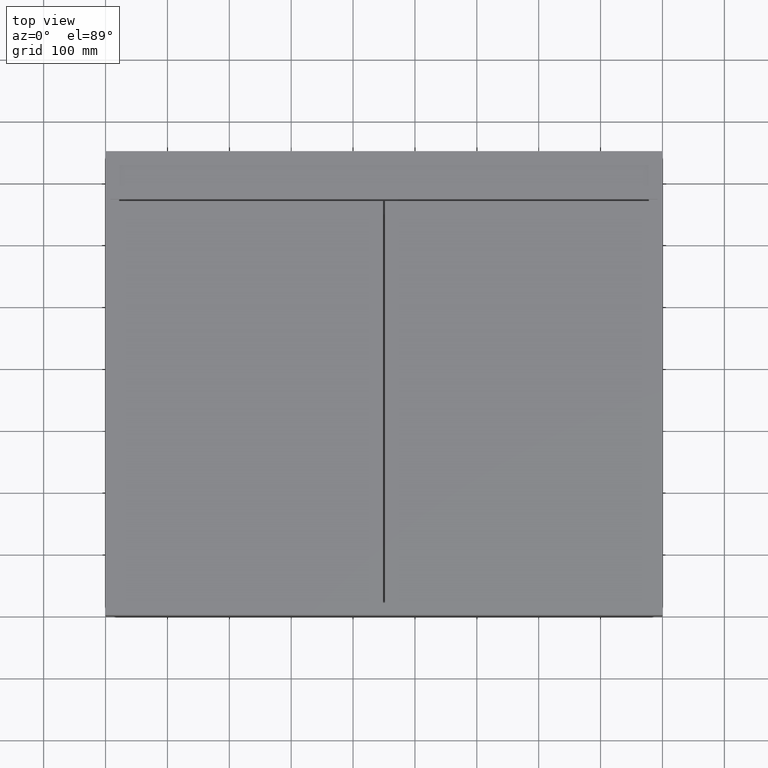
[diagram: clean part render]
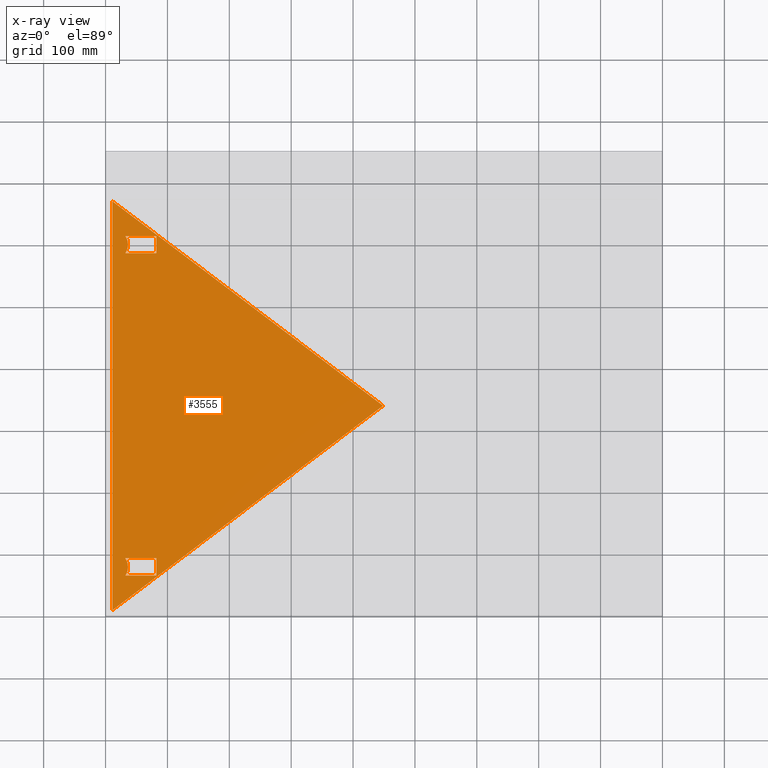
[diagram: x-ray — body ghosted, one internal face saturated and labeled with its STEP entity id]
A machine part, top view, then the same camera in x-ray: the body is ghosted and one INTERNAL B-rep face — a face not visible from any outside direction — is saturated and labeled: STEP entity #3555.
In plain terms, the highlighted planar face has unit normal (0, 0, -1).
Its self-contained STEP definition (entity closure, byte-faithful):
#138 = CARTESIAN_POINT ( 'NONE',  ( 0.0000000000000000000, 64.00000000000000000, -6.000100000000077927 ) ) ;
#142 = ORIENTED_EDGE ( 'NONE', *, *, #10430, .T. ) ;
#163 = LINE ( 'NONE', #3567, #5003 ) ;
#278 = VERTEX_POINT ( 'NONE', #6340 ) ;
#418 = CARTESIAN_POINT ( 'NONE',  ( 11.28768482279202168, 78.00000000000007105, -6.000100000000077927 ) ) ;
#645 = DIRECTION ( 'NONE',  ( -1.000000000000000000, 0.0000000000000000000, 0.0000000000000000000 ) ) ;
#686 = CIRCLE ( 'NONE', #6927, 24.99999999999999289 ) ;
#756 = LINE ( 'NONE', #4154, #4640 ) ;
#817 = VERTEX_POINT ( 'NONE', #986 ) ;
#826 = VERTEX_POINT ( 'NONE', #10373 ) ;
#841 = ORIENTED_EDGE ( 'NONE', *, *, #9263, .F. ) ;
#984 = CARTESIAN_POINT ( 'NONE',  ( 11.00000000000012079, 0.0000000000000000000, -6.000100000000077927 ) ) ;
#986 = CARTESIAN_POINT ( 'NONE',  ( 31.99999999999997158, 64.00000000000000000, -6.000100000000077927 ) ) ;
#990 = VERTEX_POINT ( 'NONE', #5555 ) ;
#1058 = CARTESIAN_POINT ( 'NONE',  ( 11.00000000000012079, 8.000000000000007105, -6.000100000000077927 ) ) ;
#1194 = DIRECTION ( 'NONE',  ( 0.0000000000000000000, 0.0000000000000000000, -1.000000000000000000 ) ) ;
#1203 = DIRECTION ( 'NONE',  ( -1.000000000000000000, 2.220446049250313081E-15, 0.0000000000000000000 ) ) ;
#1325 = VERTEX_POINT ( 'NONE', #2687 ) ;
#1425 = ORIENTED_EDGE ( 'NONE', *, *, #5065, .F. ) ;
#1659 = VECTOR ( 'NONE', #4371, 1000.000000000000000 ) ;
#1750 = CARTESIAN_POINT ( 'NONE',  ( 31.99999999999997158, 92.00000000000008527, -6.000100000000077927 ) ) ;
#1765 = EDGE_CURVE ( 'NONE', #4492, #10371, #3615, .T. ) ;
#1896 = DIRECTION ( 'NONE',  ( -1.000000000000000000, 0.0000000000000000000, 0.0000000000000000000 ) ) ;
#1909 = ORIENTED_EDGE ( 'NONE', *, *, #6033, .F. ) ;
#2030 = FACE_BOUND ( 'NONE', #4909, .T. ) ;
#2051 = DIRECTION ( 'NONE',  ( 0.0000000000000000000, 0.0000000000000000000, -1.000000000000000000 ) ) ;
#2124 = CARTESIAN_POINT ( 'NONE',  ( 0.0000000000000000000, 612.9999000000001388, -6.000100000000077927 ) ) ;
#2321 = CARTESIAN_POINT ( 'NONE',  ( 82.00000000000001421, 584.9999000000001388, -6.000100000000077927 ) ) ;
#2434 = CARTESIAN_POINT ( 'NONE',  ( 5.551115123125782702E-14, 92.00000000000008527, -6.000100000000077927 ) ) ;
#2687 = CARTESIAN_POINT ( 'NONE',  ( 36.28768482279201635, 598.9999000000001388, -6.000100000000077927 ) ) ;
#2723 = DIRECTION ( 'NONE',  ( -4.956352788505160310E-16, -1.000000000000000000, 0.0000000000000000000 ) ) ;
#2928 = CARTESIAN_POINT ( 'NONE',  ( 325.7579595591419661, 431.2227802368037146, -6.000100000000077927 ) ) ;
#2932 = EDGE_CURVE ( 'NONE', #4838, #10970, #756, .T. ) ;
#3130 = EDGE_CURVE ( 'NONE', #5972, #826, #5437, .T. ) ;
#3171 = EDGE_CURVE ( 'NONE', #10371, #817, #10048, .T. ) ;
#3542 = DIRECTION ( 'NONE',  ( -1.000000000000000000, 5.055419779840759336E-46, 0.0000000000000000000 ) ) ;
#3555 = ADVANCED_FACE ( 'NONE', ( #6267, #9682, #2030 ), #5427, .T. ) ;
#3567 = CARTESIAN_POINT ( 'NONE',  ( 82.00000000000001421, 0.0000000000000000000, -6.000100000000077927 ) ) ;
#3615 = CIRCLE ( 'NONE', #7535, 25.00000000000000711 ) ;
#3657 = ORIENTED_EDGE ( 'NONE', *, *, #9703, .F. ) ;
#3670 = ORIENTED_EDGE ( 'NONE', *, *, #3130, .F. ) ;
#3818 = DIRECTION ( 'NONE',  ( 0.0000000000000000000, 0.0000000000000000000, -1.000000000000000000 ) ) ;
#3960 = CARTESIAN_POINT ( 'NONE',  ( 11.00000000000001066, 668.9999000000001388, -6.000100000000077927 ) ) ;
#4154 = CARTESIAN_POINT ( 'NONE',  ( 0.1489591795179046052, -0.1971850254109952516, -6.000100000000077927 ) ) ;
#4294 = VECTOR ( 'NONE', #6333, 1000.000000000000000 ) ;
#4371 = DIRECTION ( 'NONE',  ( -1.233464685409332897E-16, 1.000000000000000000, 0.0000000000000000000 ) ) ;
#4377 = ORIENTED_EDGE ( 'NONE', *, *, #3171, .T. ) ;
#4492 = VERTEX_POINT ( 'NONE', #1750 ) ;
#4574 = DIRECTION ( 'NONE',  ( -1.000000000000000000, 5.055419779840759336E-46, 0.0000000000000000000 ) ) ;
#4632 = CIRCLE ( 'NONE', #10887, 24.99999999999999289 ) ;
#4640 = VECTOR ( 'NONE', #7577, 1000.000000000000000 ) ;
#4723 = ORIENTED_EDGE ( 'NONE', *, *, #9063, .F. ) ;
#4781 = VECTOR ( 'NONE', #5829, 1000.000000000000000 ) ;
#4838 = VERTEX_POINT ( 'NONE', #1058 ) ;
#4886 = CARTESIAN_POINT ( 'NONE',  ( 11.28768482279202168, 598.9999000000001388, -6.000100000000077927 ) ) ;
#4909 = EDGE_LOOP ( 'NONE', ( #1909, #6200, #4377, #5184, #1425 ) ) ;
#5003 = VECTOR ( 'NONE', #6987, 1000.000000000000000 ) ;
#5029 = CARTESIAN_POINT ( 'NONE',  ( 82.00000000000001421, 92.00000000000008527, -6.000100000000077927 ) ) ;
#5065 = EDGE_CURVE ( 'NONE', #8936, #990, #6971, .T. ) ;
#5184 = ORIENTED_EDGE ( 'NONE', *, *, #10431, .F. ) ;
#5310 = EDGE_CURVE ( 'NONE', #1325, #826, #686, .T. ) ;
#5427 = PLANE ( 'NONE',  #10239 ) ;
#5437 = LINE ( 'NONE', #8863, #10757 ) ;
#5446 = DIRECTION ( 'NONE',  ( -1.000000000000000000, 0.0000000000000000000, 0.0000000000000000000 ) ) ;
#5527 = DIRECTION ( 'NONE',  ( 1.000000000000000000, -5.055419779840759336E-46, 0.0000000000000000000 ) ) ;
#5555 = CARTESIAN_POINT ( 'NONE',  ( 82.00000000000001421, 64.00000000000000000, -6.000100000000077927 ) ) ;
#5592 = CARTESIAN_POINT ( 'NONE',  ( 448.5000000000000000, 338.4999500000001262, -6.000100000000077927 ) ) ;
#5829 = DIRECTION ( 'NONE',  ( 1.000000000000000000, -5.551115123125782702E-16, 0.0000000000000000000 ) ) ;
#5972 = VERTEX_POINT ( 'NONE', #2321 ) ;
#6033 = EDGE_CURVE ( 'NONE', #4492, #8936, #10094, .T. ) ;
#6142 = CARTESIAN_POINT ( 'NONE',  ( 11.28768482279202168, 78.00000000000007105, -6.000100000000077927 ) ) ;
#6200 = ORIENTED_EDGE ( 'NONE', *, *, #1765, .T. ) ;
#6267 = FACE_OUTER_BOUND ( 'NONE', #10057, .T. ) ;
#6298 = AXIS2_PLACEMENT_3D ( 'NONE', #418, #3818, #7236 ) ;
#6333 = DIRECTION ( 'NONE',  ( -0.7979160994369173254, 0.6027685279270770247, 0.0000000000000000000 ) ) ;
#6340 = CARTESIAN_POINT ( 'NONE',  ( 32.00000000000002842, 612.9999000000001388, -6.000100000000077927 ) ) ;
#6343 = VERTEX_POINT ( 'NONE', #9915 ) ;
#6509 = ORIENTED_EDGE ( 'NONE', *, *, #7498, .T. ) ;
#6927 = AXIS2_PLACEMENT_3D ( 'NONE', #4886, #8303, #645 ) ;
#6971 = LINE ( 'NONE', #10381, #9598 ) ;
#6987 = DIRECTION ( 'NONE',  ( 5.055419779840759336E-46, -1.000000000000000000, 0.0000000000000000000 ) ) ;
#7236 = DIRECTION ( 'NONE',  ( -1.000000000000000000, 0.0000000000000000000, 0.0000000000000000000 ) ) ;
#7498 = EDGE_CURVE ( 'NONE', #278, #1325, #4632, .T. ) ;
#7535 = AXIS2_PLACEMENT_3D ( 'NONE', #6142, #9557, #1896 ) ;
#7577 = DIRECTION ( 'NONE',  ( 0.7979160994369173254, 0.6027685279270771357, 0.0000000000000000000 ) ) ;
#7804 = LINE ( 'NONE', #138, #7909 ) ;
#7909 = VECTOR ( 'NONE', #3542, 1000.000000000000000 ) ;
#8303 = DIRECTION ( 'NONE',  ( 0.0000000000000000000, 0.0000000000000000000, -1.000000000000000000 ) ) ;
#8509 = ORIENTED_EDGE ( 'NONE', *, *, #2932, .F. ) ;
#8650 = LINE ( 'NONE', #984, #1659 ) ;
#8853 = CARTESIAN_POINT ( 'NONE',  ( 0.0000000000000000000, 0.0000000000000000000, -6.000100000000077927 ) ) ;
#8863 = CARTESIAN_POINT ( 'NONE',  ( 1.332267629550187849E-12, 584.9999000000003662, -6.000100000000077927 ) ) ;
#8936 = VERTEX_POINT ( 'NONE', #5029 ) ;
#9063 = EDGE_CURVE ( 'NONE', #6343, #5972, #163, .T. ) ;
#9136 = VECTOR ( 'NONE', #5527, 1000.000000000000000 ) ;
#9263 = EDGE_CURVE ( 'NONE', #10970, #10999, #10588, .T. ) ;
#9428 = CARTESIAN_POINT ( 'NONE',  ( 36.28768482279203056, 78.00000000000007105, -6.000100000000077927 ) ) ;
#9557 = DIRECTION ( 'NONE',  ( 0.0000000000000000000, 0.0000000000000000000, -1.000000000000000000 ) ) ;
#9598 = VECTOR ( 'NONE', #2723, 1000.000000000000000 ) ;
#9682 = FACE_BOUND ( 'NONE', #10097, .T. ) ;
#9703 = EDGE_CURVE ( 'NONE', #278, #6343, #9778, .T. ) ;
#9704 = CARTESIAN_POINT ( 'NONE',  ( 11.28768482279202168, 598.9999000000001388, -6.000100000000077927 ) ) ;
#9778 = LINE ( 'NONE', #2124, #9136 ) ;
#9915 = CARTESIAN_POINT ( 'NONE',  ( 82.00000000000001421, 612.9999000000001388, -6.000100000000077927 ) ) ;
#10048 = CIRCLE ( 'NONE', #6298, 25.00000000000000711 ) ;
#10057 = EDGE_LOOP ( 'NONE', ( #841, #8509, #142 ) ) ;
#10094 = LINE ( 'NONE', #2434, #4781 ) ;
#10097 = EDGE_LOOP ( 'NONE', ( #3657, #6509, #10445, #3670, #4723 ) ) ;
#10239 = AXIS2_PLACEMENT_3D ( 'NONE', #8853, #1194, #4574 ) ;
#10371 = VERTEX_POINT ( 'NONE', #9428 ) ;
#10373 = CARTESIAN_POINT ( 'NONE',  ( 32.00000000000002842, 584.9999000000002525, -6.000100000000077927 ) ) ;
#10381 = CARTESIAN_POINT ( 'NONE',  ( 81.99999999999995737, -5.551115123125782702E-14, -6.000100000000077927 ) ) ;
#10430 = EDGE_CURVE ( 'NONE', #4838, #10999, #8650, .T. ) ;
#10431 = EDGE_CURVE ( 'NONE', #990, #817, #7804, .T. ) ;
#10445 = ORIENTED_EDGE ( 'NONE', *, *, #5310, .T. ) ;
#10588 = LINE ( 'NONE', #2928, #4294 ) ;
#10757 = VECTOR ( 'NONE', #1203, 1000.000000000000000 ) ;
#10887 = AXIS2_PLACEMENT_3D ( 'NONE', #9704, #2051, #5446 ) ;
#10970 = VERTEX_POINT ( 'NONE', #5592 ) ;
#10999 = VERTEX_POINT ( 'NONE', #3960 ) ;